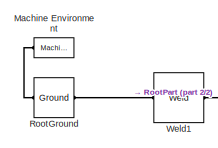
[diagram: root canvas - part 1/2, top left region]
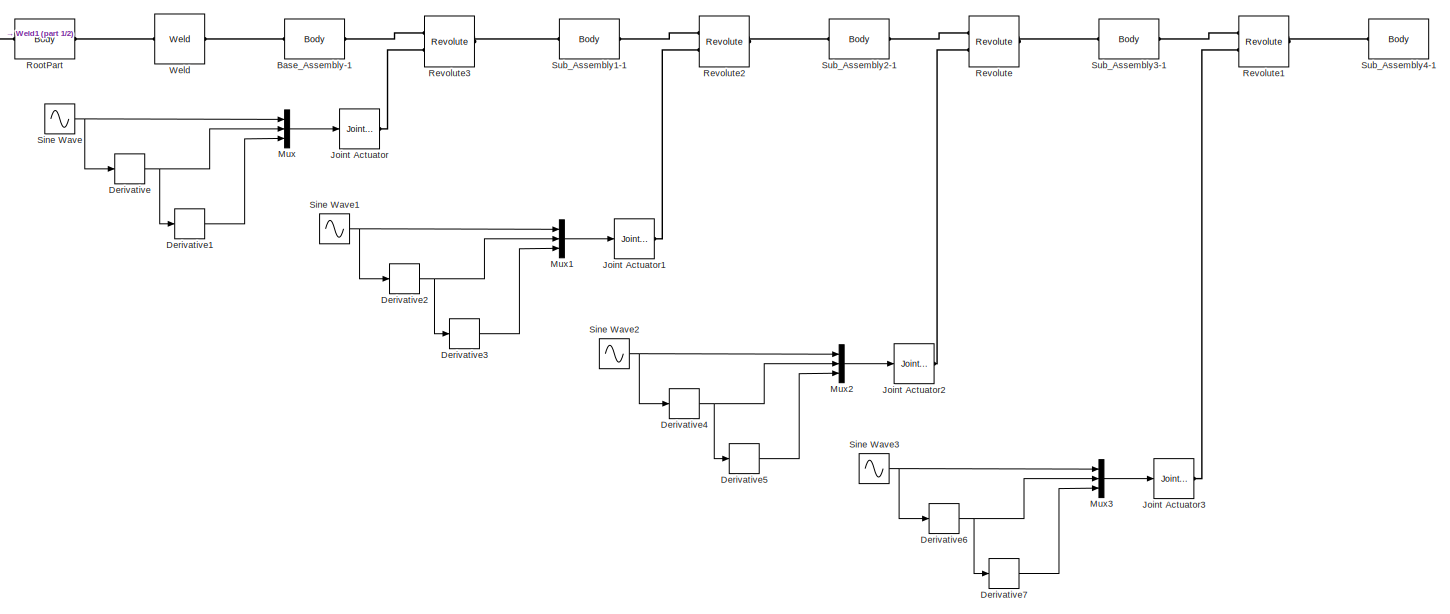
[diagram: root canvas - part 2/2, most of the canvas]
MODEL slx_b45f17d6d0b2
KIND model
BLOCK [Reference] Base_Assembly-1  REF=mblibv1/Bodies/Body
  AttachedToCS = CS1
  BodyColor = [0;0;1]
  BodyColorSelMode = COLORPALETTE
  CG = Right$CG$[0.0863608 0.0666392 0.155753]$WORLD$WORLD$m$[1 0 0;0 1 0;0 0 1]$3x3 Transform$rad$WORLD$false$Base_Assembly-1::CG(AUTOGEN)
  CGPos = [0.0863608 0.0666392 0.155753]
  CGRot = [1 0 0;0 1 0;0 0 1]
  CS0Pos = []
  CS0Rot = []
  CS10Pos = []
  CS10Rot = []
  CS11Pos = []
  CS11Rot = []
  CS12Pos = []
  CS12Rot = []
  CS13Pos = []
  CS13Rot = []
  CS14Pos = []
  CS14Rot = []
  CS15Pos = []
  CS15Rot = []
  CS16Pos = []
  CS16Rot = []
  CS17Pos = []
  CS17Rot = []
  CS18Pos = []
  CS18Rot = []
  CS19Pos = []
  CS19Rot = []
  CS1Pos = [-0.0257981 -0.00724452 0.107815]
  CS1Rot = [1 0 0;0 1 0;0 0 1]
  CS20Pos = []
  CS20Rot = []
  CS2Pos = [0.0863608 0.0666392 0.155753]
  CS2Rot = [1 0 0;0 1 0;0 0 1]
  CS3Pos = [0.0918311 0.0666392 0.120815]
  CS3Rot = [1 0 0;0 1 0;0 0 1]
  CS4Pos = []
  CS4Rot = []
  CS5Pos = []
  CS5Rot = []
  CS6Pos = []
  CS6Rot = []
  CS7Pos = []
  CS7Rot = []
  CS8Pos = []
  CS8Rot = []
  CS9Pos = []
  CS9Rot = []
  ClassName = Body
  Density = 1
  DensityUnits = kg/m^3
  DensityUse = false
  DialogClass = MechanicalBodyBlock
  GraphicsFileName = Assembly - Base_Assembly-1.STL
  GraphicsMode = GFXFILE
  Inertia = [0.00101868,2.68456e-14,-0.000208027;2.68456e-14,0.00141452,-5.88219e-14;-0.000208027,-5.88219e-14,0.000763124]
  InertiaUnits = kg*m^2
  LConnTagsString = CS2
  Mass = 0.816132
  MassUnits = kg
  PMImportedID = Base_Assembly-1
  Ports = [0, 0, 0, 0, 0, 1, 1]
  RConnTagsString = CS3
  Shape = Cylinder
  ShapeDims = [1 1]
  ShapeUnits = m
  ShapeUse = false
  SourceBlock = mblibv1/Bodies/Body
  SourceType = Body
  UpdateFromCAD = on
  WorkingFrames = Right$CS1$[-0.0257981 -0.00724452 0.107815]$WORLD$WORLD$m$[1 0 0;0 1 0;0 0 1]$3x3 Transform$rad$WORLD$false$Base_Assembly-1::CS1(AUTOGEN)#Left$CS2$[0.0863608 0.0666392 0.155753]$WORLD$WORLD$m$[1 0 0;0 1 0;0 0 1]$3x3 Transform$rad$WORLD$true$Assembly/RootPart:-:Base_Assembly-1::Base_Assembly-1(AUTOGEN)#Right$CS3$[0.0918311 0.0666392 0.120815]$WORLD$WORLD$m$[1 0 0;0 1 0;0 0 1]$3x3 Transform$rad$WORL...<+66ch>
BLOCK [Derivative] Derivative
BLOCK [Derivative] Derivative1
BLOCK [Derivative] Derivative2
BLOCK [Derivative] Derivative3
BLOCK [Derivative] Derivative4
BLOCK [Derivative] Derivative5
BLOCK [Derivative] Derivative6
BLOCK [Derivative] Derivative7
BLOCK [Reference] Joint Actuator  REF=mblibv1/Sensors & 
Actuators/Joint Actuator
  AccelerationUnits = m/s^2
  ActiveIO = on
  ActuationStyle = Motion
  AngleUnits = deg
  ArcAccelerationUnits = deg/s^2
  ArcVelocityUnits = deg/s
  ClassName = JointActuator
  CoordPositionUnits = m
  DialogClass = MechanicalActuatorBlock
  ForceUnits = N
  PhysicalDomain = Mechanical
  PortType = blob
  Ports = [1, 0, 0, 0, 0, 0, 1]
  Primitive = R1
  ReferenceFrame = Absolute (World)
  SourceBlock = mblibv1/Sensors & \nActuators/Joint Actuator
  SourceType = Joint Actuator
  TorqueUnits = N*m
  UpdateFromCAD = off
  VelocityUnits = m/s
  Width = 3
BLOCK [Reference] Joint Actuator1  REF=mblibv1/Sensors & 
Actuators/Joint Actuator
  AccelerationUnits = m/s^2
  ActiveIO = on
  ActuationStyle = Motion
  AngleUnits = deg
  ArcAccelerationUnits = deg/s^2
  ArcVelocityUnits = deg/s
  ClassName = JointActuator
  CoordPositionUnits = m
  DialogClass = MechanicalActuatorBlock
  ForceUnits = N
  PhysicalDomain = Mechanical
  PortType = blob
  Ports = [1, 0, 0, 0, 0, 0, 1]
  Primitive = R1
  ReferenceFrame = Absolute (World)
  SourceBlock = mblibv1/Sensors & \nActuators/Joint Actuator
  SourceType = Joint Actuator
  TorqueUnits = N*m
  UpdateFromCAD = off
  VelocityUnits = m/s
  Width = 3
BLOCK [Reference] Joint Actuator2  REF=mblibv1/Sensors & 
Actuators/Joint Actuator
  AccelerationUnits = m/s^2
  ActiveIO = on
  ActuationStyle = Motion
  AngleUnits = deg
  ArcAccelerationUnits = deg/s^2
  ArcVelocityUnits = deg/s
  ClassName = JointActuator
  CoordPositionUnits = m
  DialogClass = MechanicalActuatorBlock
  ForceUnits = N
  PhysicalDomain = Mechanical
  PortType = blob
  Ports = [1, 0, 0, 0, 0, 0, 1]
  Primitive = R1
  ReferenceFrame = Absolute (World)
  SourceBlock = mblibv1/Sensors & \nActuators/Joint Actuator
  SourceType = Joint Actuator
  TorqueUnits = N*m
  UpdateFromCAD = off
  VelocityUnits = m/s
  Width = 3
BLOCK [Reference] Joint Actuator3  REF=mblibv1/Sensors & 
Actuators/Joint Actuator
  AccelerationUnits = m/s^2
  ActiveIO = on
  ActuationStyle = Motion
  AngleUnits = deg
  ArcAccelerationUnits = deg/s^2
  ArcVelocityUnits = deg/s
  ClassName = JointActuator
  CoordPositionUnits = m
  DialogClass = MechanicalActuatorBlock
  ForceUnits = N
  PhysicalDomain = Mechanical
  PortType = blob
  Ports = [1, 0, 0, 0, 0, 0, 1]
  Primitive = R1
  ReferenceFrame = Absolute (World)
  SourceBlock = mblibv1/Sensors & \nActuators/Joint Actuator
  SourceType = Joint Actuator
  TorqueUnits = N*m
  UpdateFromCAD = off
  VelocityUnits = m/s
  Width = 3
BLOCK [Reference] Machine Environment  REF=mblibv1/Bodies/Machine
Environment
  AnalysisType = Forward dynamics
  AngularAssemblyTolerance = 1e-3
  AngularAssemblyToleranceUnits = rad
  BodyColorSelMode = Use model default
  BodyVisualizationType = Use model default body geometries
  ClassName = Environment
  ConstraintAbsTolerance = 1e-4
  ConstraintRelTolerance = 1e-4
  ConstraintSolverType = Stabilizing
  DefaultBodyColor = [1 0 0]
  DialogTemplateClass = MECH.MachineEnvironment
  Dimensionality = Auto-detect
  Gravity = [0 -9.81 0]
  GravityAsSignal = off
  GravityUnits = m/s^2
  LinearAssemblyTolerance = 1e-3
  LinearAssemblyToleranceUnits = m
  PerturbationSize = 1e-5
  PhysicalDomain = Mechanical
  PortType = env
  Ports = [0, 0, 0, 0, 0, 0, 1]
  RedundancyAnalysisTolerance = 1e-14
  RedundancyAnalysisToleranceType = Automatically select tolerance
  SourceBlock = mblibv1/Bodies/Machine\nEnvironment
  SourceType = Machine Environment
  StatePerturbationType = Fixed
  SyncWhenCopied = off
  UseRobustSingularityHandling = off
  VisualizeMachine = on
BLOCK [Mux] Mux
  DisplayOption = bar
  Inputs = 3
  Ports = [3, 1]
BLOCK [Mux] Mux1
  DisplayOption = bar
  Inputs = 3
  Ports = [3, 1]
BLOCK [Mux] Mux2
  DisplayOption = bar
  Inputs = 3
  Ports = [3, 1]
BLOCK [Mux] Mux3
  DisplayOption = bar
  Inputs = 3
  Ports = [3, 1]
BLOCK [Reference] Revolute  REF=mblibv1/Joints/Revolute
  ClassName = Joint
  CutJoint = off
  DialogClass = JointBlock
  LConnTagsString = __newl0|SA1
  MarkAsCut = off
  NumSAPorts = 1
  PMImportedID = Sub_Assembly2-1:-:Sub_Assembly3-1
  Ports = [0, 0, 0, 0, 0, 2, 1]
  PrimitiveProps = R1$World$[0,0,-1]$revolute
  Primitives = prismatic
  R1Axis = [0,0,-1]
  RConnTagsString = __newr0
  SourceBlock = mblibv1/Joints/Revolute
  SourceType = Revolute
  UpdateFromCAD = on
BLOCK [Reference] Revolute1  REF=mblibv1/Joints/Revolute
  ClassName = Joint
  CutJoint = off
  DialogClass = JointBlock
  LConnTagsString = __newl0|SA1
  MarkAsCut = off
  NumSAPorts = 1
  PMImportedID = Sub_Assembly3-1:-:Sub_Assembly4-1
  Ports = [0, 0, 0, 0, 0, 2, 1]
  PrimitiveProps = R1$World$[0,1,0]$revolute
  Primitives = prismatic
  R1Axis = [0,1,0]
  RConnTagsString = __newr0
  SourceBlock = mblibv1/Joints/Revolute
  SourceType = Revolute
  UpdateFromCAD = on
BLOCK [Reference] Revolute2  REF=mblibv1/Joints/Revolute
  ClassName = Joint
  CutJoint = off
  DialogClass = JointBlock
  LConnTagsString = __newl0|SA1
  MarkAsCut = off
  NumSAPorts = 1
  PMImportedID = Sub_Assembly1-1:-:Sub_Assembly2-1
  Ports = [0, 0, 0, 0, 0, 2, 1]
  PrimitiveProps = R1$World$[1,0,0]$revolute
  Primitives = prismatic
  R1Axis = [1,0,0]
  RConnTagsString = __newr0
  SourceBlock = mblibv1/Joints/Revolute
  SourceType = Revolute
  UpdateFromCAD = on
BLOCK [Reference] Revolute3  REF=mblibv1/Joints/Revolute
  ClassName = Joint
  CutJoint = off
  DialogClass = JointBlock
  LConnTagsString = __newl0|SA1
  MarkAsCut = off
  NumSAPorts = 1
  PMImportedID = Base_Assembly-1:-:Sub_Assembly1-1
  Ports = [0, 0, 0, 0, 0, 2, 1]
  PrimitiveProps = R1$World$[0,0,-1]$revolute
  Primitives = prismatic
  R1Axis = [0,0,-1]
  RConnTagsString = __newr0
  SourceBlock = mblibv1/Joints/Revolute
  SourceType = Revolute
  UpdateFromCAD = on
BLOCK [Reference] RootGround  REF=mblibv1/Bodies/Ground
  ClassName = Ground
  CoordPosition = [0.108255,0.0656856,-0.00842688]
  CoordPositionUnits = m
  DialogClass = GroundBlock
  LeftPortType = env
  MachineId = [1 0]
  PMImportedID = RootGround
  PhysicalDomain = Mechanical
  Ports = [0, 0, 0, 0, 0, 1, 1]
  RightPortType = workingframe
  ShowEnvPort = on
  SourceBlock = mblibv1/Bodies/Ground
  SourceType = Ground
  StateVectorMgrId = 0
  UpdateFromCAD = on
  UserDataPersistent = on
BLOCK [Reference] RootPart  REF=mblibv1/Bodies/Body
  AttachedToCS = CS1
  BodyColor = [1;0;0]
  BodyColorSelMode = MACHINE_DEFAULT
  CG = Right$CG$[0.108255 0.0656856 -0.00842688]$WORLD$WORLD$m$[1 0 0;0 1 0;0 0 1]$3x3 Transform$rad$WORLD$false$Assembly/RootPart::CG(AUTOGEN)
  CGPos = [0.108255 0.0656856 -0.00842688]
  CGRot = [1 0 0;0 1 0;0 0 1]
  CS0Pos = []
  CS0Rot = []
  CS10Pos = []
  CS10Rot = []
  CS11Pos = []
  CS11Rot = []
  CS12Pos = []
  CS12Rot = []
  CS13Pos = []
  CS13Rot = []
  CS14Pos = []
  CS14Rot = []
  CS15Pos = []
  CS15Rot = []
  CS16Pos = []
  CS16Rot = []
  CS17Pos = []
  CS17Rot = []
  CS18Pos = []
  CS18Rot = []
  CS19Pos = []
  CS19Rot = []
  CS1Pos = [0 0 0]
  CS1Rot = [1 0 0;0 1 0;0 0 1]
  CS20Pos = []
  CS20Rot = []
  CS2Pos = [0.0863608 0.0666392 0.155753]
  CS2Rot = [1 0 0;0 1 0;0 0 1]
  CS3Pos = [0.108255 0.0656856 -0.00842688]
  CS3Rot = [1 0 0;0 1 0;0 0 1]
  CS4Pos = []
  CS4Rot = []
  CS5Pos = []
  CS5Rot = []
  CS6Pos = []
  CS6Rot = []
  CS7Pos = []
  CS7Rot = []
  CS8Pos = []
  CS8Rot = []
  CS9Pos = []
  CS9Rot = []
  ClassName = Body
  Density = 1
  DensityUnits = kg/m^3
  DensityUse = false
  DialogClass = MechanicalBodyBlock
  GraphicsMode = MACHINE_DEFAULT
  Inertia = [0,0,0;0,0,0;0,0,0]
  InertiaUnits = kg*m^2
  LConnTagsString = CS3
  Mass = 0
  MassUnits = kg
  PMImportedID = Assembly/RootPart
  Ports = [0, 0, 0, 0, 0, 1, 1]
  RConnTagsString = CS2
  Shape = Cylinder
  ShapeDims = [1 1]
  ShapeUnits = m
  ShapeUse = false
  SourceBlock = mblibv1/Bodies/Body
  SourceType = Body
  UpdateFromCAD = on
  WorkingFrames = Right$CS1$[0 0 0]$WORLD$WORLD$m$[1 0 0;0 1 0;0 0 1]$3x3 Transform$rad$WORLD$false$Assembly/RootPart::CS1(AUTOGEN)#Right$CS2$[0.0863608 0.0666392 0.155753]$WORLD$WORLD$m$[1 0 0;0 1 0;0 0 1]$3x3 Transform$rad$WORLD$true$Assembly/RootPart:-:Base_Assembly-1::Assembly/RootPart(AUTOGEN)#Left$CS3$[0.108255 0.0656856 -0.00842688]$WORLD$WORLD$m$[1 0 0;0 1 0;0 0 1]$3x3 Transform$rad$WORLD$true$Assembly/Root...<+45ch>
BLOCK [Sin] Sine Wave
  Amplitude = 45
  Ports = [0, 1]
  SampleTime = 0
BLOCK [Sin] Sine Wave1
  Amplitude = 45
  Ports = [0, 1]
  SampleTime = 0
BLOCK [Sin] Sine Wave2
  Amplitude = 45
  Ports = [0, 1]
  SampleTime = 0
BLOCK [Sin] Sine Wave3
  Amplitude = 45
  Ports = [0, 1]
  SampleTime = 0
BLOCK [Reference] Sub_Assembly1-1  REF=mblibv1/Bodies/Body
  AttachedToCS = CS1
  BodyColor = [0;1;0]
  BodyColorSelMode = COLORPALETTE
  CG = Right$CG$[0.0944723 0.0666171 0.061243]$WORLD$WORLD$m$[1 0 0;0 1 0;0 0 1]$3x3 Transform$rad$WORLD$false$Sub_Assembly1-1::CG(AUTOGEN)
  CGPos = [0.0944723 0.0666171 0.061243]
  CGRot = [1 0 0;0 1 0;0 0 1]
  CS0Pos = []
  CS0Rot = []
  CS10Pos = []
  CS10Rot = []
  CS11Pos = []
  CS11Rot = []
  CS12Pos = []
  CS12Rot = []
  CS13Pos = []
  CS13Rot = []
  CS14Pos = []
  CS14Rot = []
  CS15Pos = []
  CS15Rot = []
  CS16Pos = []
  CS16Rot = []
  CS17Pos = []
  CS17Rot = []
  CS18Pos = []
  CS18Rot = []
  CS19Pos = []
  CS19Rot = []
  CS1Pos = [0.0758841 0.047428 0.0750282]
  CS1Rot = [1 0 0;0 1 0;0 0 1]
  CS20Pos = []
  CS20Rot = []
  CS2Pos = [0.134581 0.0666392 0.0587152]
  CS2Rot = [1 0 0;0 1 0;0 0 1]
  CS3Pos = [0.0918311 0.0666392 0.120815]
  CS3Rot = [1 0 0;0 1 0;0 0 1]
  CS4Pos = []
  CS4Rot = []
  CS5Pos = []
  CS5Rot = []
  CS6Pos = []
  CS6Rot = []
  CS7Pos = []
  CS7Rot = []
  CS8Pos = []
  CS8Rot = []
  CS9Pos = []
  CS9Rot = []
  ClassName = Body
  Density = 1
  DensityUnits = kg/m^3
  DensityUse = false
  DialogClass = MechanicalBodyBlock
  GraphicsFileName = Assembly - Sub_Assembly1-1.STL
  GraphicsMode = GFXFILE
  Inertia = [0.000429886,2.65004e-07,7.38865e-06;2.65004e-07,0.0010883,-4.75425e-08;7.38865e-06,-4.75425e-08,0.00103792]
  InertiaUnits = kg*m^2
  LConnTagsString = CS3
  Mass = 0.850196
  MassUnits = kg
  PMImportedID = Sub_Assembly1-1
  Ports = [0, 0, 0, 0, 0, 1, 1]
  RConnTagsString = CS2
  Shape = Cylinder
  ShapeDims = [1 1]
  ShapeUnits = m
  ShapeUse = false
  SourceBlock = mblibv1/Bodies/Body
  SourceType = Body
  UpdateFromCAD = on
  WorkingFrames = Right$CS1$[0.0758841 0.047428 0.0750282]$WORLD$WORLD$m$[1 0 0;0 1 0;0 0 1]$3x3 Transform$rad$WORLD$false$Sub_Assembly1-1::CS1(AUTOGEN)#Right$CS2$[0.134581 0.0666392 0.0587152]$WORLD$WORLD$m$[1 0 0;0 1 0;0 0 1]$3x3 Transform$rad$WORLD$true$Sub_Assembly1-1:-:Sub_Assembly2-1::Sub_Assembly1-1(AUTOGEN)#Left$CS3$[0.0918311 0.0666392 0.120815]$WORLD$WORLD$m$[1 0 0;0 1 0;0 0 1]$3x3 Transform$rad$WORLD$tru...<+61ch>
BLOCK [Reference] Sub_Assembly2-1  REF=mblibv1/Bodies/Body
  AttachedToCS = CS1
  BodyColor = [1;1;0]
  BodyColorSelMode = COLORPALETTE
  CG = Right$CG$[0.0951659 0.0666308 -0.0315029]$WORLD$WORLD$m$[0 0 -1;0 -1 0;-1 0 0]$3x3 Transform$rad$WORLD$false$Sub_Assembly2-1::CG(AUTOGEN)
  CGPos = [0.0951659 0.0666308 -0.0315029]
  CGRot = [0 0 -1;0 -1 0;-1 0 0]
  CS0Pos = []
  CS0Rot = []
  CS10Pos = []
  CS10Rot = []
  CS11Pos = []
  CS11Rot = []
  CS12Pos = []
  CS12Rot = []
  CS13Pos = []
  CS13Rot = []
  CS14Pos = []
  CS14Rot = []
  CS15Pos = []
  CS15Rot = []
  CS16Pos = []
  CS16Rot = []
  CS17Pos = []
  CS17Rot = []
  CS18Pos = []
  CS18Rot = []
  CS19Pos = []
  CS19Rot = []
  CS1Pos = [0.180947 0.0857083 0.0737485]
  CS1Rot = [0 0 -1;0 -1 0;-1 0 0]
  CS20Pos = []
  CS20Rot = []
  CS2Pos = [0.0939311 0.0666392 -0.0770839]
  CS2Rot = [1 0 0;0 1 0;0 0 1]
  CS3Pos = [0.134581 0.0666392 0.0587152]
  CS3Rot = [1 0 0;0 1 0;0 0 1]
  CS4Pos = []
  CS4Rot = []
  CS5Pos = []
  CS5Rot = []
  CS6Pos = []
  CS6Rot = []
  CS7Pos = []
  CS7Rot = []
  CS8Pos = []
  CS8Rot = []
  CS9Pos = []
  CS9Rot = []
  ClassName = Body
  Density = 1
  DensityUnits = kg/m^3
  DensityUse = false
  DialogClass = MechanicalBodyBlock
  GraphicsFileName = Assembly - Sub_Assembly2-1.STL
  GraphicsMode = GFXFILE
  Inertia = [0.000813069,2.47935e-07,-8.81681e-05;2.47935e-07,0.00189612,-9.90122e-09;-8.81681e-05,-9.90122e-09,0.00152266]
  InertiaUnits = kg*m^2
  LConnTagsString = CS3
  Mass = 0.955246
  MassUnits = kg
  PMImportedID = Sub_Assembly2-1
  Ports = [0, 0, 0, 0, 0, 1, 1]
  RConnTagsString = CS2
  Shape = Cylinder
  ShapeDims = [1 1]
  ShapeUnits = m
  ShapeUse = false
  SourceBlock = mblibv1/Bodies/Body
  SourceType = Body
  UpdateFromCAD = on
  WorkingFrames = Right$CS1$[0.180947 0.0857083 0.0737485]$WORLD$WORLD$m$[0 0 -1;0 -1 0;-1 0 0]$3x3 Transform$rad$WORLD$false$Sub_Assembly2-1::CS1(AUTOGEN)#Right$CS2$[0.0939311 0.0666392 -0.0770839]$WORLD$WORLD$m$[1 0 0;0 1 0;0 0 1]$3x3 Transform$rad$WORLD$true$Sub_Assembly2-1:-:Sub_Assembly3-1::Sub_Assembly2-1(AUTOGEN)#Left$CS3$[0.134581 0.0666392 0.0587152]$WORLD$WORLD$m$[1 0 0;0 1 0;0 0 1]$3x3 Transform$rad$WORL...<+66ch>
BLOCK [Reference] Sub_Assembly3-1  REF=mblibv1/Bodies/Body
  AttachedToCS = CS1
  BodyColor = [0.909804;0.443137;0.0313725]
  BodyColorSelMode = COLORPALETTE
  CG = Right$CG$[0.148009 0.0629405 -0.0652875]$WORLD$WORLD$m$[-0.866025 0.5 0;-0.5 -0.866025 0;0 0 1]$3x3 Transform$rad$WORLD$false$Sub_Assembly3-1::CG(AUTOGEN)
  CGPos = [0.148009 0.0629405 -0.0652875]
  CGRot = [-0.866025 0.5 0;-0.5 -0.866025 0;0 0 1]
  CS0Pos = []
  CS0Rot = []
  CS10Pos = []
  CS10Rot = []
  CS11Pos = []
  CS11Rot = []
  CS12Pos = []
  CS12Rot = []
  CS13Pos = []
  CS13Rot = []
  CS14Pos = []
  CS14Rot = []
  CS15Pos = []
  CS15Rot = []
  CS16Pos = []
  CS16Rot = []
  CS17Pos = []
  CS17Rot = []
  CS18Pos = []
  CS18Rot = []
  CS19Pos = []
  CS19Rot = []
  CS1Pos = [0.100495 0.0912165 -0.122623]
  CS1Rot = [-0.866025 0.5 0;-0.5 -0.866025 0;0 0 1]
  CS20Pos = []
  CS20Rot = []
  CS2Pos = [0.0939311 0.0666392 -0.0770839]
  CS2Rot = [1 0 0;0 1 0;0 0 1]
  CS3Pos = [0.0939311 0.109639 -0.230684]
  CS3Rot = [1 0 0;0 1 0;0 0 1]
  CS4Pos = []
  CS4Rot = []
  CS5Pos = []
  CS5Rot = []
  CS6Pos = []
  CS6Rot = []
  CS7Pos = []
  CS7Rot = []
  CS8Pos = []
  CS8Rot = []
  CS9Pos = []
  CS9Rot = []
  ClassName = Body
  Density = 1
  DensityUnits = kg/m^3
  DensityUse = false
  DialogClass = MechanicalBodyBlock
  GraphicsFileName = Assembly - Sub_Assembly3-1.STL
  GraphicsMode = GFXFILE
  Inertia = [0.00518587,0.000358971,0.00133807;0.000358971,0.00541515,-0.000899224;0.00133807,-0.000899224,0.00332016]
  InertiaUnits = kg*m^2
  LConnTagsString = CS2
  Mass = 1.1576
  MassUnits = kg
  PMImportedID = Sub_Assembly3-1
  Ports = [0, 0, 0, 0, 0, 1, 1]
  RConnTagsString = CS3
  Shape = Cylinder
  ShapeDims = [1 1]
  ShapeUnits = m
  ShapeUse = false
  SourceBlock = mblibv1/Bodies/Body
  SourceType = Body
  UpdateFromCAD = on
  WorkingFrames = Right$CS1$[0.100495 0.0912165 -0.122623]$WORLD$WORLD$m$[-0.866025 0.5 0;-0.5 -0.866025 0;0 0 1]$3x3 Transform$rad$WORLD$false$Sub_Assembly3-1::CS1(AUTOGEN)#Left$CS2$[0.0939311 0.0666392 -0.0770839]$WORLD$WORLD$m$[1 0 0;0 1 0;0 0 1]$3x3 Transform$rad$WORLD$true$Sub_Assembly2-1:-:Sub_Assembly3-1::Sub_Assembly3-1(AUTOGEN)#Right$CS3$[0.0939311 0.109639 -0.230684]$WORLD$WORLD$m$[1 0 0;0 1 0;0 0 1]$3x3 ...<+84ch>
BLOCK [Reference] Sub_Assembly4-1  REF=mblibv1/Bodies/Body
  AttachedToCS = CS1
  BodyColor = [1;0;0]
  BodyColorSelMode = COLORPALETTE
  CG = Right$CG$[0.093931 0.0682545 -0.39259]$WORLD$WORLD$m$[1 0 0;0 0 1;0 -1 0]$3x3 Transform$rad$WORLD$false$Sub_Assembly4-1::CG(AUTOGEN)
  CGPos = [0.093931 0.0682545 -0.39259]
  CGRot = [1 0 0;0 0 1;0 -1 0]
  CS0Pos = []
  CS0Rot = []
  CS10Pos = []
  CS10Rot = []
  CS11Pos = []
  CS11Rot = []
  CS12Pos = []
  CS12Rot = []
  CS13Pos = []
  CS13Rot = []
  CS14Pos = []
  CS14Rot = []
  CS15Pos = []
  CS15Rot = []
  CS16Pos = []
  CS16Rot = []
  CS17Pos = []
  CS17Rot = []
  CS18Pos = []
  CS18Rot = []
  CS19Pos = []
  CS19Rot = []
  CS1Pos = [0.0385874 -0.0559867 -0.149356]
  CS1Rot = [1 0 0;0 0 1;0 -1 0]
  CS20Pos = []
  CS20Rot = []
  CS2Pos = [0.0939311 0.109639 -0.230684]
  CS2Rot = [1 0 0;0 1 0;0 0 1]
  CS3Pos = []
  CS3Rot = []
  CS4Pos = []
  CS4Rot = []
  CS5Pos = []
  CS5Rot = []
  CS6Pos = []
  CS6Rot = []
  CS7Pos = []
  CS7Rot = []
  CS8Pos = []
  CS8Rot = []
  CS9Pos = []
  CS9Rot = []
  ClassName = Body
  Density = 1
  DensityUnits = kg/m^3
  DensityUse = false
  DialogClass = MechanicalBodyBlock
  GraphicsFileName = Assembly - Sub_Assembly4-1.STL
  GraphicsMode = GFXFILE
  Inertia = [0.00239407,-3.61918e-09,1.62879e-09;-3.61918e-09,0.000217632,9.3932e-05;1.62879e-09,9.3932e-05,0.00235245]
  InertiaUnits = kg*m^2
  LConnTagsString = CS2
  Mass = 0.274259
  MassUnits = kg
  PMImportedID = Sub_Assembly4-1
  Ports = [0, 0, 0, 0, 0, 1]
  Shape = Cylinder
  ShapeDims = [1 1]
  ShapeUnits = m
  ShapeUse = false
  SourceBlock = mblibv1/Bodies/Body
  SourceType = Body
  UpdateFromCAD = on
  WorkingFrames = Right$CS1$[0.0385874 -0.0559867 -0.149356]$WORLD$WORLD$m$[1 0 0;0 0 1;0 -1 0]$3x3 Transform$rad$WORLD$false$Sub_Assembly4-1::CS1(AUTOGEN)#Left$CS2$[0.0939311 0.109639 -0.230684]$WORLD$WORLD$m$[1 0 0;0 1 0;0 0 1]$3x3 Transform$rad$WORLD$true$Sub_Assembly3-1:-:Sub_Assembly4-1::Sub_Assembly4-1(AUTOGEN)
BLOCK [Reference] Weld  REF=mblibv1/Joints/Weld
  ClassName = Joint
  CutJoint = off
  DialogClass = JointBlock
  LConnTagsString = __newl0
  MarkAsCut = off
  NumSAPorts = 0
  PMImportedID = Assembly/RootPart:-:Base_Assembly-1
  Ports = [0, 0, 0, 0, 0, 1, 1]
  PrimitiveProps = W$WORLD$[0.57735,0.57735,0.57735]$weld
  Primitives = weld
  RConnTagsString = __newr0
  SourceBlock = mblibv1/Joints/Weld
  SourceType = Weld
  UpdateFromCAD = on
  WAxis = [0.57735,0.57735,0.57735]
BLOCK [Reference] Weld1  REF=mblibv1/Joints/Weld
  ClassName = Joint
  CutJoint = off
  DialogClass = JointBlock
  LConnTagsString = __newl0
  MarkAsCut = off
  NumSAPorts = 0
  PMImportedID = Assembly/RootPart:-:RootGround
  Ports = [0, 0, 0, 0, 0, 1, 1]
  PrimitiveProps = W$WORLD$[0.57735,0.57735,0.57735]$weld
  Primitives = weld
  RConnTagsString = __newr0
  SourceBlock = mblibv1/Joints/Weld
  SourceType = Weld
  UpdateFromCAD = on
  WAxis = [0.57735,0.57735,0.57735]
LINE Derivative1:1 -> Mux:3
NET Derivative2:1 -> Derivative3:1, Mux1:2
LINE Derivative3:1 -> Mux1:3
NET Derivative4:1 -> Derivative5:1, Mux2:2
LINE Derivative5:1 -> Mux2:3
NET Derivative6:1 -> Derivative7:1, Mux3:2
LINE Derivative7:1 -> Mux3:3
NET Derivative:1 -> Derivative1:1, Mux:2
LINE Mux1:1 -> Joint Actuator1:1
LINE Mux2:1 -> Joint Actuator2:1
LINE Mux3:1 -> Joint Actuator3:1
LINE Mux:1 -> Joint Actuator:1
NET Sine Wave1:1 -> Derivative2:1, Mux1:1
NET Sine Wave2:1 -> Derivative4:1, Mux2:1
NET Sine Wave3:1 -> Derivative6:1, Mux3:1
NET Sine Wave:1 -> Derivative:1, Mux:1
PLINE Base_Assembly-1:LConn1 -- Weld:RConn1
PLINE Base_Assembly-1:RConn1 -- Revolute3:LConn1
PLINE Joint Actuator1:RConn1 -- Revolute2:LConn2
PLINE Joint Actuator2:RConn1 -- Revolute:LConn2
PLINE Joint Actuator3:RConn1 -- Revolute1:LConn2
PLINE Joint Actuator:RConn1 -- Revolute3:LConn2
PLINE Machine Environment:RConn1 -- RootGround:LConn1
PLINE Revolute1:LConn1 -- Sub_Assembly3-1:RConn1
PLINE Revolute1:RConn1 -- Sub_Assembly4-1:LConn1
PLINE Revolute2:LConn1 -- Sub_Assembly1-1:RConn1
PLINE Revolute2:RConn1 -- Sub_Assembly2-1:LConn1
PLINE Revolute3:RConn1 -- Sub_Assembly1-1:LConn1
PLINE Revolute:LConn1 -- Sub_Assembly2-1:RConn1
PLINE Revolute:RConn1 -- Sub_Assembly3-1:LConn1
PLINE RootGround:RConn1 -- Weld1:LConn1
PLINE RootPart:LConn1 -- Weld1:RConn1
PLINE RootPart:RConn1 -- Weld:LConn1
note: NET lines group one-source signal fan-out (src -> all destinations, sorted); 1:1 wires keep LINE
